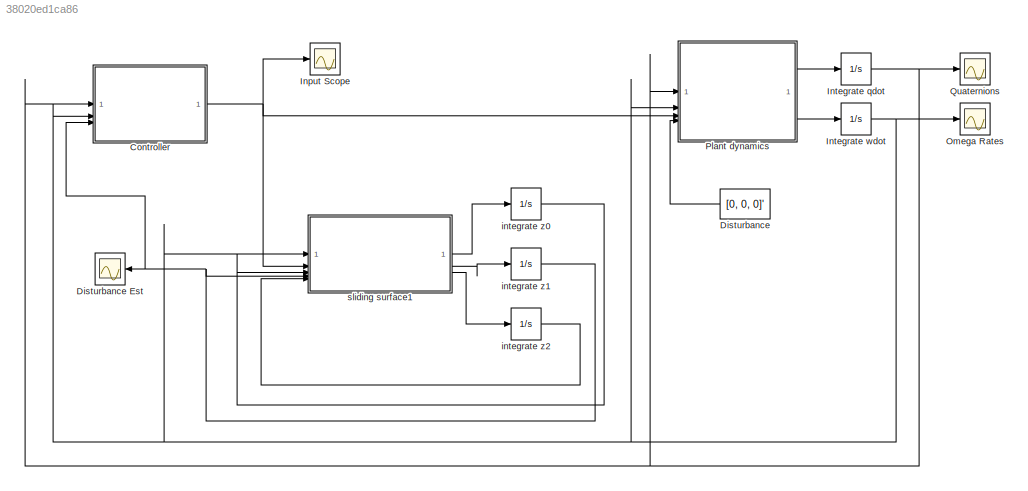
MODEL slx_38020ed1ca86
KIND model
CONFIG AbsTol = auto
CONFIG EnableMultiTasking = off
CONFIG FixedStep = auto
CONFIG MaxStep = auto
CONFIG MinStep = auto
CONFIG RelTol = 1e-3
CONFIG SampleTimeConstraint = Unconstrained
CONFIG SolverName = VariableStepAuto
CONFIG StartTime = 0.0
CONFIG StopTime = 10
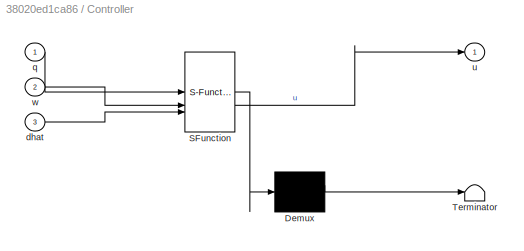
BLOCK [SubSystem] Controller
  ErrorFcn = Stateflow.Translate.translate
  PermitHierarchicalResolution = ExplicitOnly
  SFBlockType = MATLAB Function
  TreatAsAtomicUnit = on
BLOCK [Demux] Controller/ Demux 
  Outputs = 1
BLOCK [S-Function] Controller/ SFunction 
  EnableBusSupport = on
  FunctionName = sf_sfun
  PortCounts = [3 2]
  SFcnIsStateOwnerBlock = off
  SFunctionDeploymentMode = off
  Tag = Stateflow S-Function 1
BLOCK [Terminator] Controller/ Terminator 
BLOCK [Inport] Controller/dhat
  Port = 3
BLOCK [Inport] Controller/q
BLOCK [Outport] Controller/u
BLOCK [Inport] Controller/w
  Port = 2
BLOCK [Constant] Disturbance
  Value = [0, 0, 0]'
BLOCK [Scope] Disturbance Est
  Floating = off
  NumInputPorts = 1
  ScopeSpecificationString = Simulink.scopes.TimeScopeBlockCfg('CurrentConfiguration', extmgr.ConfigurationSet(extmgr.Configuration('Core','General UI',true),extmgr.Configuration('Core','Source UI',true),extmgr.Configuration('Sources','WiredSimulink',true,'DataLoggingVariableName','ScopeData4'),extmgr.Configuration('Visuals','Time Domain',true,'SerializedDisplays',{struct('MinYLimReal','-1.00000','MaxYLimReal','1.00000','YLab...<+1474ch>
BLOCK [Scope] Input Scope
  Floating = off
  NumInputPorts = 1
  ScopeSpecificationString = Simulink.scopes.TimeScopeBlockCfg('CurrentConfiguration', extmgr.ConfigurationSet(extmgr.Configuration('Core','General UI',true),extmgr.Configuration('Core','Source UI',true),extmgr.Configuration('Sources','WiredSimulink',true,'DataLoggingVariableName','ScopeData2'),extmgr.Configuration('Visuals','Time Domain',true,'SerializedDisplays',{struct('MinYLimReal','-0.0804','MaxYLimReal','0.00893','YLabe...<+1496ch>
BLOCK [Integrator] Integrate qdot
  InitialCondition = [0.081, 0.054, 0.126, 0]'
BLOCK [Integrator] Integrate wdot
BLOCK [Scope] Omega Rates
  Floating = off
  NumInputPorts = 1
  ScopeSpecificationString = Simulink.scopes.TimeScopeBlockCfg('CurrentConfiguration', extmgr.ConfigurationSet(extmgr.Configuration('Core','General UI',true),extmgr.Configuration('Core','Source UI',true),extmgr.Configuration('Sources','WiredSimulink',true),extmgr.Configuration('Visuals','Time Domain',true,'SerializedDisplays',{struct('MinYLimReal','-2.83543','MaxYLimReal','0.3301','YLabelReal','','MinYLimMag','0.00000','MaxYL...<+1473ch>
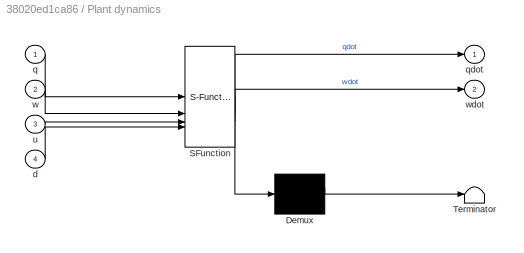
BLOCK [SubSystem] Plant dynamics
  ErrorFcn = Stateflow.Translate.translate
  PermitHierarchicalResolution = ExplicitOnly
  SFBlockType = MATLAB Function
  TreatAsAtomicUnit = on
BLOCK [Demux] Plant dynamics/ Demux 
  Outputs = 1
BLOCK [S-Function] Plant dynamics/ SFunction 
  EnableBusSupport = on
  FunctionName = sf_sfun
  PortCounts = [4 3]
  SFcnIsStateOwnerBlock = off
  SFunctionDeploymentMode = off
  Tag = Stateflow S-Function 2
BLOCK [Terminator] Plant dynamics/ Terminator 
BLOCK [Inport] Plant dynamics/d
  Port = 4
BLOCK [Inport] Plant dynamics/q
BLOCK [Outport] Plant dynamics/qdot
BLOCK [Inport] Plant dynamics/u
  Port = 3
BLOCK [Inport] Plant dynamics/w
  Port = 2
BLOCK [Outport] Plant dynamics/wdot
  Port = 2
BLOCK [Scope] Quaternions
  Floating = off
  NumInputPorts = 1
  ScopeSpecificationString = Simulink.scopes.TimeScopeBlockCfg('CurrentConfiguration', extmgr.ConfigurationSet(extmgr.Configuration('Core','General UI',true),extmgr.Configuration('Core','Source UI',true),extmgr.Configuration('Sources','WiredSimulink',true,'DataLoggingVariableName','ScopeData1'),extmgr.Configuration('Visuals','Time Domain',true,'SerializedDisplays',{struct('MinYLimReal','-0.01829','MaxYLimReal','0.16465','YLab...<+1510ch>
BLOCK [Integrator] integrate z0
BLOCK [Integrator] integrate z1
BLOCK [Integrator] integrate z2
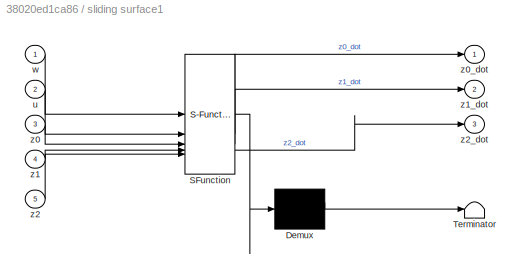
BLOCK [SubSystem] sliding surface1
  ErrorFcn = Stateflow.Translate.translate
  PermitHierarchicalResolution = ExplicitOnly
  SFBlockType = MATLAB Function
  TreatAsAtomicUnit = on
BLOCK [Demux] sliding surface1/ Demux 
  Outputs = 1
BLOCK [S-Function] sliding surface1/ SFunction 
  EnableBusSupport = on
  FunctionName = sf_sfun
  PortCounts = [5 4]
  SFcnIsStateOwnerBlock = off
  SFunctionDeploymentMode = off
  Tag = Stateflow S-Function 4
BLOCK [Terminator] sliding surface1/ Terminator 
BLOCK [Inport] sliding surface1/u
  Port = 2
BLOCK [Inport] sliding surface1/w
BLOCK [Inport] sliding surface1/z0
  Port = 3
BLOCK [Outport] sliding surface1/z0_dot
BLOCK [Inport] sliding surface1/z1
  Port = 4
BLOCK [Outport] sliding surface1/z1_dot
  Port = 2
BLOCK [Inport] sliding surface1/z2
  Port = 5
BLOCK [Outport] sliding surface1/z2_dot
  Port = 3
NET Controller:1 -> Input Scope:1, Plant dynamics:3, sliding surface1:2
LINE Disturbance:1 -> Plant dynamics:4
NET Integrate qdot:1 -> Controller:1, Plant dynamics:1, Quaternions:1
NET Integrate wdot:1 -> Controller:2, Omega Rates:1, Plant dynamics:2, sliding surface1:1
LINE Plant dynamics:1 -> Integrate qdot:1
LINE Plant dynamics:2 -> Integrate wdot:1
LINE integrate z0:1 -> sliding surface1:3
NET integrate z1:1 -> Controller:3, Disturbance Est:1, sliding surface1:4
LINE integrate z2:1 -> sliding surface1:5
LINE sliding surface1:1 -> integrate z0:1
LINE sliding surface1:2 -> integrate z1:1
LINE sliding surface1:3 -> integrate z2:1
note: NET lines group one-source signal fan-out (src -> all destinations, sorted); 1:1 wires keep LINE
CHART Controller states=1 transitions=1
  STATE_LABEL 'eML_blk_kernel()'
  STATE_LABEL 'SCRIPT:\nfunction u = CONTROLLER(q, w, dhat)\n\nu = [0;0;0];\n\n%C1 = (Ixz)/(Ixx*Izz-Ixz^2);\n%C2 = (Ixx)/(Ixx*Izz-Ixz^2);\n%C3 = 1/Iyy;\n%C4 = (Izz)/(Ixx*Izz-Ixz^2);\n\n\n%A = [C4*Lp, 0, C1*Nr;\n%    0, C3*Mq, 0;\n%    Cq*Lp, 0, C2*Nr];\n%B = [C4*Ldp, C1*Ndb, 0;\n%    0, 0, C3*Mp;\n%    C1*Ldp, C2*Ndb, 0];\n\nA = [-15.20, 0, -19.31;\n    0, -2.61, 0;\n    -8.13, 0, -43.18];\n\nB = [4275.35, 2860.64, 0;\n    0, 0, 3590....<+471ch>'
CHART Plant dynamics states=1 transitions=1
  STATE_LABEL 'eML_blk_kernel()'
  STATE_LABEL 'SCRIPT:\nfunction [qdot, wdot] = PLANT(q, w, u, d)\n\nqdot = [0;0;0;0];\nwdot = [0;0;0];\n\n%C1 = (Ixz)/(Ixx*Izz-Ixz^2);\n%C2 = (Ixx)/(Ixx*Izz-Ixz^2);\n%C3 = 1/Iyy;\n%C4 = (Izz)/(Ixx*Izz-Ixz^2);\n\n\n%A = [C4*Lp, 0, C1*Nr;\n%    0, C3*Mq, 0;\n%    Cq*Lp, 0, C2*Nr];\n%B = [C4*Ldp, C1*Ndb, 0;\n%    0, 0, C3*Mp;\n%    C1*Ldp, C2*Ndb, 0];\n\nA = [-15.20, 0, -19.31;\n    0, -2.61, 0;\n    -8.13, 0, -43.18];\n\nB = [4275.35, ...<+254ch>'
CHART sliding surface1 states=1 transitions=1
  STATE_LABEL 'eML_blk_kernel()'
  STATE_LABEL 'SCRIPT:\nfunction [z0_dot, z1_dot, z2_dot] = OBSERVER(w, u, z0, z1, z2)\n\nz0_dot = [0;0;0];\nz1_dot = [0;0;0];\nz2_dot = [0;0;0];\n\nA = [-15.20, 0, -19.31;\n    0, -2.61, 0;\n    -8.13, 0, -43.18];\n\nB = [4275.35, 2860.64, 0;\n    0, 0, 3590.66;\n    2288.51, 6397.42, 0];\n\nL = 1000;\nL0 = L^(1/3)*eye(3);\nL1 = L^(2/3)*eye(3);\nL2 = L^(0)*eye(3);\n\nlambda0 = 3;\nlambda1 = 1.5*sqrt(3);\nlambda2 = 1.1;\nn = 2;\n\nerror...<+524ch>'
CHART  states=0 transitions=0
CHART  states=0 transitions=0
CHART  states=0 transitions=0
